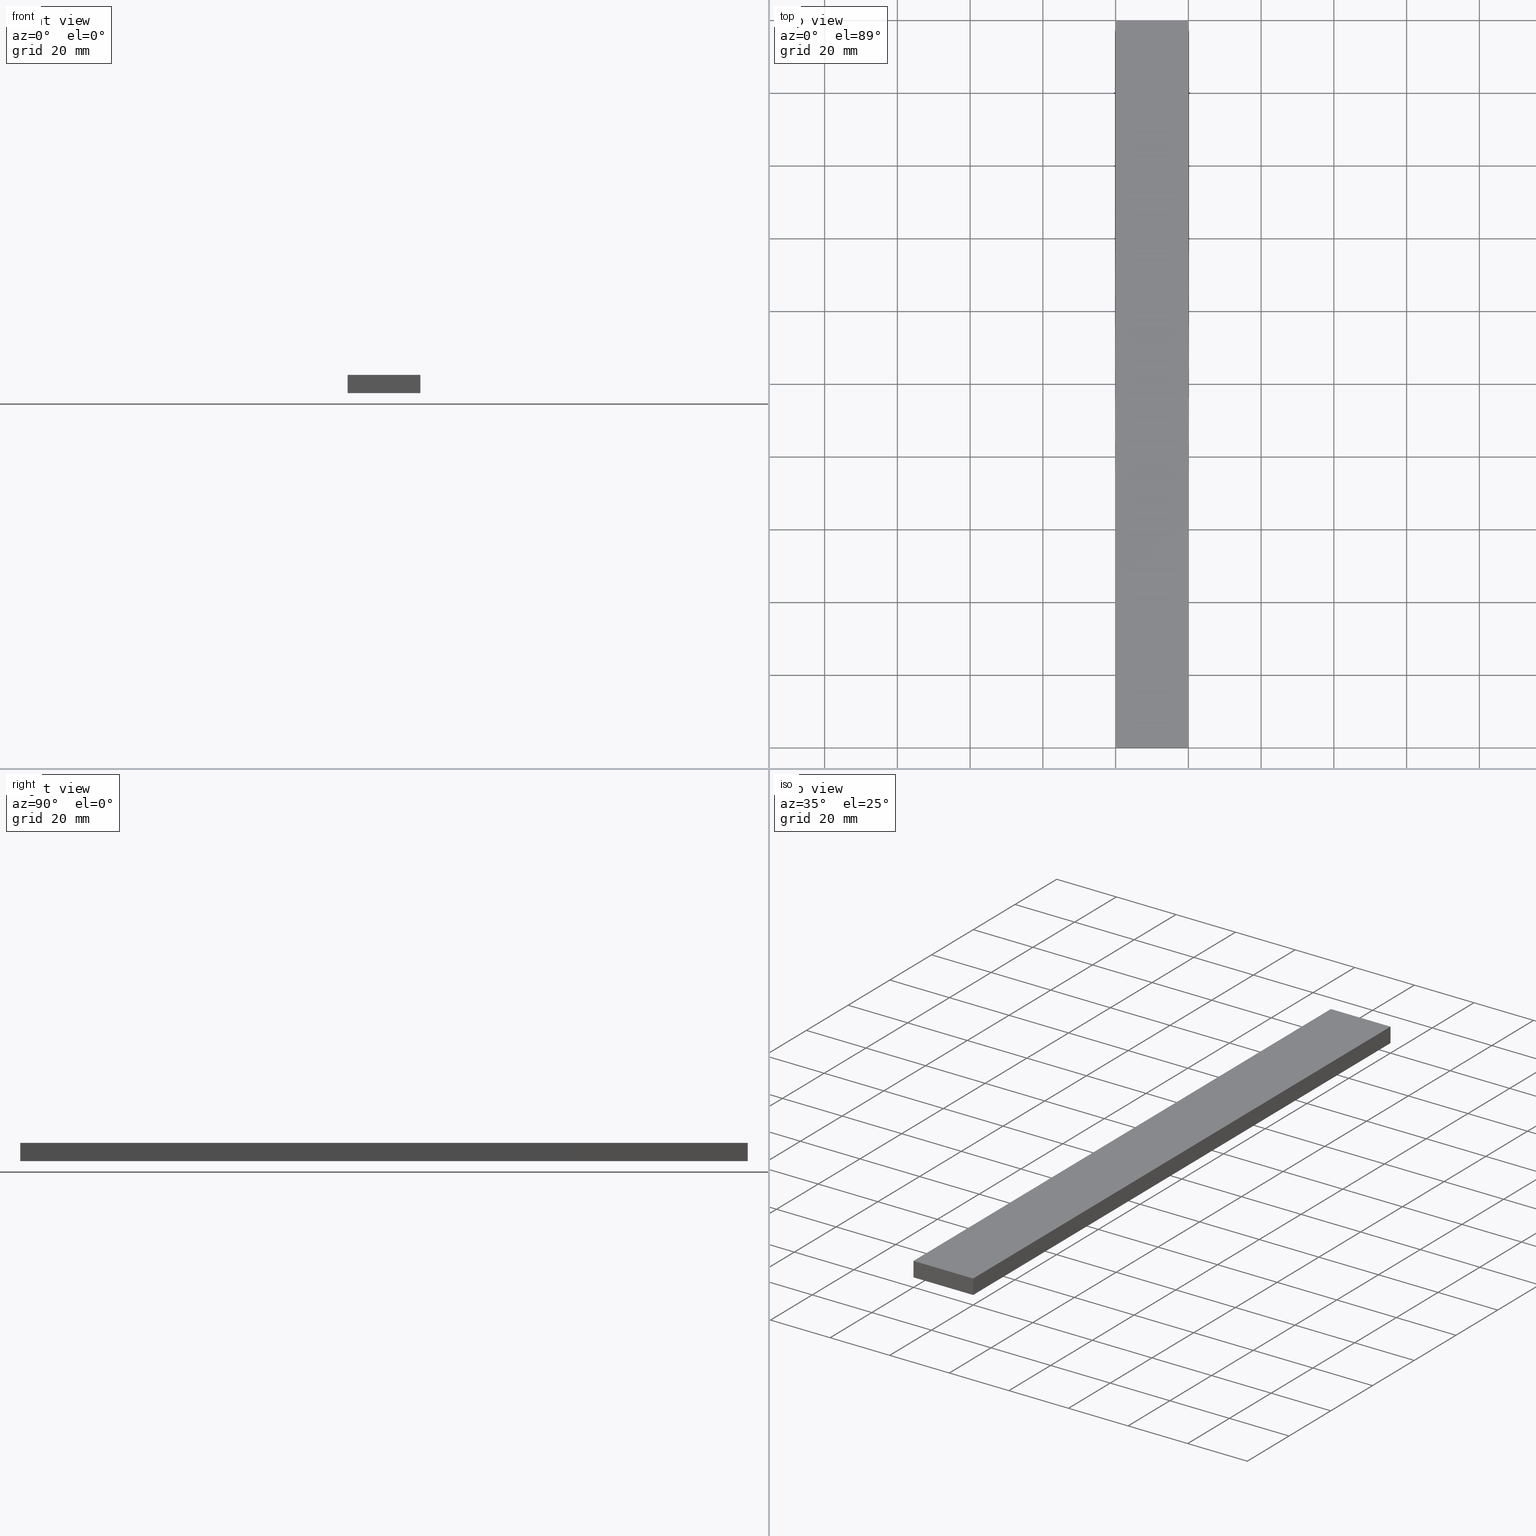
[diagram: canonical four-view strip — front | top / right | iso, engineering-drawing reading convention]
A machine part, canonical four-view strip (front | top / right | iso — engineering-drawing reading convention). The complete STEP part file that produces these views, byte-faithful:
ISO-10303-21;
HEADER;
FILE_DESCRIPTION (( 'STEP AP214' ),
    '1' );
FILE_NAME ('TM_340W_4.STEP',
    '2016-05-09T07:23:47',
    ( '' ),
    ( '' ),
    'SwSTEP 2.0',
    'SolidWorks 2015',
    '' );
FILE_SCHEMA (( 'AUTOMOTIVE_DESIGN' ));
ENDSEC;

DATA;
#1 = UNCERTAINTY_MEASURE_WITH_UNIT (LENGTH_MEASURE( 1.000000000000000100E-005 ), #141, 'distance_accuracy_value', 'NONE');
#2 = APPLICATION_CONTEXT ( 'automotive_design' ) ;
#3 = ORIENTED_EDGE ( 'NONE', *, *, #184, .T. ) ;
#4 = VECTOR ( 'NONE', #171, 1000.000000000000000 ) ;
#5 = APPLICATION_CONTEXT ( 'automotive_design' ) ;
#6 =( REPRESENTATION_RELATIONSHIP ('NONE','NONE', #192, #193 ) REPRESENTATION_RELATIONSHIP_WITH_TRANSFORMATION ( #31 )SHAPE_REPRESENTATION_RELATIONSHIP( ) );
#7 = ORIENTED_EDGE ( 'NONE', *, *, #184, .F. ) ;
#8 =( NAMED_UNIT ( * ) PLANE_ANGLE_UNIT ( ) SI_UNIT ( $, .RADIAN. ) );
#9 = PLANE ( 'NONE',  #156 ) ;
#10 = CARTESIAN_POINT ( 'NONE',  ( 0.0000000000000000000, 1000.000000000000000, 5.000000000000000000 ) ) ;
#11 = PRESENTATION_LAYER_ASSIGNMENT (  '', '', ( #82 ) ) ;
#12 = CARTESIAN_POINT ( 'NONE',  ( 0.0000000000000000000, 0.0000000000000000000, 0.0000000000000000000 ) ) ;
#13 = FILL_AREA_STYLE_COLOUR ( '', #175 ) ;
#14 =( NAMED_UNIT ( * ) PLANE_ANGLE_UNIT ( ) SI_UNIT ( $, .RADIAN. ) );
#15 = UNCERTAINTY_MEASURE_WITH_UNIT (LENGTH_MEASURE( 1.000000000000000100E-005 ), #191, 'distance_accuracy_value', 'NONE');
#16 = FACE_OUTER_BOUND ( 'NONE', #32, .T. ) ;
#17 = APPLICATION_PROTOCOL_DEFINITION ( 'draft international standard', 'automotive_design', 1998, #89 ) ;
#18 =( GEOMETRIC_REPRESENTATION_CONTEXT ( 3 ) GLOBAL_UNCERTAINTY_ASSIGNED_CONTEXT ( ( #15 ) ) GLOBAL_UNIT_ASSIGNED_CONTEXT ( ( #191, #77, #207 ) ) REPRESENTATION_CONTEXT ( 'NONE', 'WORKASPACE' ) );
#19 = PRODUCT_DEFINITION_CONTEXT ( 'detailed design', #5, 'design' ) ;
#20 = ADVANCED_FACE ( 'NONE', ( #205 ), #95, .F. ) ;
#21 = DIRECTION ( 'NONE',  ( 0.0000000000000000000, 0.0000000000000000000, -1.000000000000000000 ) ) ;
#22 = ORIENTED_EDGE ( 'NONE', *, *, #83, .F. ) ;
#23 = VERTEX_POINT ( 'NONE', #232 ) ;
#24 = PRODUCT_RELATED_PRODUCT_CATEGORY ( 'part', '', ( #223 ) ) ;
#25 = ADVANCED_FACE ( 'NONE', ( #123 ), #9, .F. ) ;
#26 = ORIENTED_EDGE ( 'NONE', *, *, #233, .T. ) ;
#27 = ORIENTED_EDGE ( 'NONE', *, *, #169, .T. ) ;
#28 = EDGE_LOOP ( 'NONE', ( #136, #29, #40, #238 ) ) ;
#29 = ORIENTED_EDGE ( 'NONE', *, *, #150, .F. ) ;
#30 = VERTEX_POINT ( 'NONE', #34 ) ;
#31 = ITEM_DEFINED_TRANSFORMATION ( 'NONE', 'NONE', #140,  #132 ) ;
#32 = EDGE_LOOP ( 'NONE', ( #230, #57, #93, #26 ) ) ;
#33 = CARTESIAN_POINT ( 'NONE',  ( 0.0000000000000000000, 200.0000000000000000, 5.000000000000000000 ) ) ;
#34 = CARTESIAN_POINT ( 'NONE',  ( 0.0000000000000000000, 0.0000000000000000000, 0.0000000000000000000 ) ) ;
#35 = ORIENTED_EDGE ( 'NONE', *, *, #78, .T. ) ;
#36 = PLANE ( 'NONE',  #75 ) ;
#37 = LINE ( 'NONE', #234, #137 ) ;
#38 =( NAMED_UNIT ( * ) SI_UNIT ( $, .STERADIAN. ) SOLID_ANGLE_UNIT ( ) );
#39 = UNCERTAINTY_MEASURE_WITH_UNIT (LENGTH_MEASURE( 1.000000000000000100E-005 ), #187, 'distance_accuracy_value', 'NONE');
#40 = ORIENTED_EDGE ( 'NONE', *, *, #233, .F. ) ;
#41 = LINE ( 'NONE', #164, #127 ) ;
#42 = AXIS2_PLACEMENT_3D ( 'NONE', #172, #153, #43 ) ;
#43 = DIRECTION ( 'NONE',  ( 1.000000000000000000, 0.0000000000000000000, 0.0000000000000000000 ) ) ;
#44 = FACE_OUTER_BOUND ( 'NONE', #130, .T. ) ;
#45 = MECHANICAL_DESIGN_GEOMETRIC_PRESENTATION_REPRESENTATION (  '', ( #139 ), #100 ) ;
#46 = ADVANCED_FACE ( 'NONE', ( #16 ), #36, .T. ) ;
#47 = PRODUCT_DEFINITION_FORMATION_WITH_SPECIFIED_SOURCE ( 'ANY', '', #200, .NOT_KNOWN. ) ;
#48 = LINE ( 'NONE', #10, #147 ) ;
#49 = AXIS2_PLACEMENT_3D ( 'NONE', #179, #67, #199 ) ;
#50 = ORIENTED_EDGE ( 'NONE', *, *, #226, .F. ) ;
#51 = LINE ( 'NONE', #69, #173 ) ;
#52 = CARTESIAN_POINT ( 'NONE',  ( 0.0000000000000000000, 200.0000000000000000, 0.0000000000000000000 ) ) ;
#53 = PRODUCT_DEFINITION_CONTEXT ( 'detailed design', #2, 'design' ) ;
#54 = DIRECTION ( 'NONE',  ( -1.000000000000000000, 0.0000000000000000000, 0.0000000000000000000 ) ) ;
#55 = DIRECTION ( 'NONE',  ( 0.0000000000000000000, 0.0000000000000000000, 1.000000000000000000 ) ) ;
#56 = SURFACE_SIDE_STYLE ('',( #114 ) ) ;
#57 = ORIENTED_EDGE ( 'NONE', *, *, #188, .T. ) ;
#58 = ADVANCED_FACE ( 'NONE', ( #44 ), #126, .F. ) ;
#59 = DIRECTION ( 'NONE',  ( 1.000000000000000000, 0.0000000000000000000, 0.0000000000000000000 ) ) ;
#60 = LINE ( 'NONE', #33, #229 ) ;
#61 = DIRECTION ( 'NONE',  ( 1.000000000000000000, 0.0000000000000000000, 0.0000000000000000000 ) ) ;
#62 = VECTOR ( 'NONE', #66, 1000.000000000000000 ) ;
#63 =( GEOMETRIC_REPRESENTATION_CONTEXT ( 3 ) GLOBAL_UNCERTAINTY_ASSIGNED_CONTEXT ( ( #1 ) ) GLOBAL_UNIT_ASSIGNED_CONTEXT ( ( #141, #8, #161 ) ) REPRESENTATION_CONTEXT ( 'NONE', 'WORKASPACE' ) );
#64 = DIRECTION ( 'NONE',  ( 1.000000000000000000, 0.0000000000000000000, 0.0000000000000000000 ) ) ;
#65 = CARTESIAN_POINT ( 'NONE',  ( 0.0000000000000000000, 1000.000000000000000, 5.000000000000000000 ) ) ;
#66 = DIRECTION ( 'NONE',  ( -1.000000000000000000, 0.0000000000000000000, 0.0000000000000000000 ) ) ;
#67 = DIRECTION ( 'NONE',  ( -1.000000000000000000, 0.0000000000000000000, 0.0000000000000000000 ) ) ;
#68 = DIRECTION ( 'NONE',  ( 1.000000000000000000, 0.0000000000000000000, 0.0000000000000000000 ) ) ;
#69 = CARTESIAN_POINT ( 'NONE',  ( 0.0000000000000000000, 0.0000000000000000000, 0.0000000000000000000 ) ) ;
#70 = CARTESIAN_POINT ( 'NONE',  ( 0.0000000000000000000, 200.0000000000000000, 0.0000000000000000000 ) ) ;
#71 = PRODUCT_DEFINITION_SHAPE ( 'NONE', 'NONE',  #190 ) ;
#72 =( NAMED_UNIT ( * ) PLANE_ANGLE_UNIT ( ) SI_UNIT ( $, .RADIAN. ) );
#73 = PRESENTATION_STYLE_ASSIGNMENT (( #74 ) ) ;
#74 = SURFACE_STYLE_USAGE ( .BOTH. , #56 ) ;
#75 = AXIS2_PLACEMENT_3D ( 'NONE', #88, #186, #64 ) ;
#76 = ORIENTED_EDGE ( 'NONE', *, *, #150, .T. ) ;
#77 =( NAMED_UNIT ( * ) PLANE_ANGLE_UNIT ( ) SI_UNIT ( $, .RADIAN. ) );
#78 = EDGE_CURVE ( 'NONE', #124, #145, #162, .T. ) ;
#79 = DIRECTION ( 'NONE',  ( 0.0000000000000000000, 0.0000000000000000000, 1.000000000000000000 ) ) ;
#80 = VECTOR ( 'NONE', #125, 1000.000000000000000 ) ;
#81 = VECTOR ( 'NONE', #180, 1000.000000000000000 ) ;
#82 = STYLED_ITEM ( 'NONE', ( #84 ), #176 ) ;
#83 = EDGE_CURVE ( 'NONE', #116, #98, #60, .T. ) ;
#84 = PRESENTATION_STYLE_ASSIGNMENT (( #101 ) ) ;
#85 = FILL_AREA_STYLE ('',( #182 ) ) ;
#86 = CARTESIAN_POINT ( 'NONE',  ( 20.00000000000000000, 1000.000000000000000, 0.0000000000000000000 ) ) ;
#87 = LINE ( 'NONE', #201, #227 ) ;
#88 = CARTESIAN_POINT ( 'NONE',  ( 0.0000000000000000000, 200.0000000000000000, 0.0000000000000000000 ) ) ;
#89 = APPLICATION_CONTEXT ( 'automotive_design' ) ;
#90 = LINE ( 'NONE', #215, #4 ) ;
#91 = PLANE ( 'NONE',  #221 ) ;
#92 = VECTOR ( 'NONE', #236, 1000.000000000000000 ) ;
#93 = ORIENTED_EDGE ( 'NONE', *, *, #110, .T. ) ;
#94 = CARTESIAN_POINT ( 'NONE',  ( 0.0000000000000000000, 1000.000000000000000, 0.0000000000000000000 ) ) ;
#95 = PLANE ( 'NONE',  #189 ) ;
#96 = APPLICATION_PROTOCOL_DEFINITION ( 'draft international standard', 'automotive_design', 1998, #5 ) ;
#97 = PRODUCT_DEFINITION ( 'UNKNOWN', '', #47, #19 ) ;
#98 = VERTEX_POINT ( 'NONE', #104 ) ;
#99 = EDGE_CURVE ( 'NONE', #131, #30, #113, .T. ) ;
#100 =( GEOMETRIC_REPRESENTATION_CONTEXT ( 3 ) GLOBAL_UNCERTAINTY_ASSIGNED_CONTEXT ( ( #160 ) ) GLOBAL_UNIT_ASSIGNED_CONTEXT ( ( #111, #14, #38 ) ) REPRESENTATION_CONTEXT ( 'NONE', 'WORKASPACE' ) );
#101 = SURFACE_STYLE_USAGE ( .BOTH. , #216 ) ;
#102 = CARTESIAN_POINT ( 'NONE',  ( 0.0000000000000000000, 1000.000000000000000, 0.0000000000000000000 ) ) ;
#103 = DIRECTION ( 'NONE',  ( 0.0000000000000000000, 0.0000000000000000000, -1.000000000000000000 ) ) ;
#104 = CARTESIAN_POINT ( 'NONE',  ( 20.00000000000000000, 200.0000000000000000, 5.000000000000000000 ) ) ;
#105 = PLANE ( 'NONE',  #49 ) ;
#106 = DIRECTION ( 'NONE',  ( 0.0000000000000000000, 0.0000000000000000000, 1.000000000000000000 ) ) ;
#107 = PRESENTATION_LAYER_ASSIGNMENT (  '', '', ( #139 ) ) ;
#108 = PRODUCT_DEFINITION_SHAPE ( 'NONE', 'NONE',  #239 ) ;
#109 = CARTESIAN_POINT ( 'NONE',  ( 0.0000000000000000000, 0.0000000000000000000, 0.0000000000000000000 ) ) ;
#110 = EDGE_CURVE ( 'NONE', #23, #131, #183, .T. ) ;
#111 =( LENGTH_UNIT ( ) NAMED_UNIT ( * ) SI_UNIT ( .MILLI., .METRE. ) );
#112 = SHAPE_DEFINITION_REPRESENTATION ( #222, #193 ) ;
#113 = LINE ( 'NONE', #102, #81 ) ;
#114 = SURFACE_STYLE_FILL_AREA ( #148 ) ;
#115 = ORIENTED_EDGE ( 'NONE', *, *, #169, .F. ) ;
#116 = VERTEX_POINT ( 'NONE', #219 ) ;
#117 = LINE ( 'NONE', #197, #80 ) ;
#118 = ORIENTED_EDGE ( 'NONE', *, *, #110, .F. ) ;
#119 = PRODUCT_CONTEXT ( 'NONE', #196, 'mechanical' ) ;
#120 = PRODUCT_CONTEXT ( 'NONE', #89, 'mechanical' ) ;
#121 = ORIENTED_EDGE ( 'NONE', *, *, #188, .F. ) ;
#122 = ORIENTED_EDGE ( 'NONE', *, *, #99, .F. ) ;
#123 = FACE_OUTER_BOUND ( 'NONE', #28, .T. ) ;
#124 = VERTEX_POINT ( 'NONE', #142 ) ;
#125 = DIRECTION ( 'NONE',  ( 0.0000000000000000000, 0.0000000000000000000, -1.000000000000000000 ) ) ;
#126 = PLANE ( 'NONE',  #133 ) ;
#127 = VECTOR ( 'NONE', #235, 1000.000000000000000 ) ;
#128 = DIRECTION ( 'NONE',  ( 1.000000000000000000, 0.0000000000000000000, 0.0000000000000000000 ) ) ;
#129 = DIRECTION ( 'NONE',  ( 1.000000000000000000, 0.0000000000000000000, 0.0000000000000000000 ) ) ;
#130 = EDGE_LOOP ( 'NONE', ( #27, #211, #22, #76 ) ) ;
#131 = VERTEX_POINT ( 'NONE', #52 ) ;
#132 = AXIS2_PLACEMENT_3D ( 'NONE', #109, #237, #129 ) ;
#133 = AXIS2_PLACEMENT_3D ( 'NONE', #65, #158, #54 ) ;
#134 = EDGE_LOOP ( 'NONE', ( #35, #7, #121, #159 ) ) ;
#135 = AXIS2_PLACEMENT_3D ( 'NONE', #12, #170, #220 ) ;
#136 = ORIENTED_EDGE ( 'NONE', *, *, #226, .T. ) ;
#137 = VECTOR ( 'NONE', #68, 1000.000000000000000 ) ;
#138 = APPLICATION_PROTOCOL_DEFINITION ( 'draft international standard', 'automotive_design', 1998, #2 ) ;
#139 = STYLED_ITEM ( 'NONE', ( #73 ), #143 ) ;
#140 = AXIS2_PLACEMENT_3D ( 'NONE', #209, #79, #59 ) ;
#141 =( LENGTH_UNIT ( ) NAMED_UNIT ( * ) SI_UNIT ( .MILLI., .METRE. ) );
#142 = CARTESIAN_POINT ( 'NONE',  ( 20.00000000000000000, 0.0000000000000000000, 5.000000000000000000 ) ) ;
#143 = ADVANCED_BREP_SHAPE_REPRESENTATION ( '', ( #176, #132 ), #157 ) ;
#144 = DIRECTION ( 'NONE',  ( 0.0000000000000000000, -1.000000000000000000, 0.0000000000000000000 ) ) ;
#145 = VERTEX_POINT ( 'NONE', #202 ) ;
#146 = ORIENTED_EDGE ( 'NONE', *, *, #78, .F. ) ;
#147 = VECTOR ( 'NONE', #167, 1000.000000000000000 ) ;
#148 = FILL_AREA_STYLE ('',( #13 ) ) ;
#149 = ADVANCED_FACE ( 'NONE', ( #224 ), #105, .F. ) ;
#150 = EDGE_CURVE ( 'NONE', #116, #165, #48, .T. ) ;
#151 = SURFACE_STYLE_FILL_AREA ( #85 ) ;
#152 = EDGE_LOOP ( 'NONE', ( #194, #122, #118, #3 ) ) ;
#153 = DIRECTION ( 'NONE',  ( 0.0000000000000000000, 0.0000000000000000000, 1.000000000000000000 ) ) ;
#154 = SHAPE_REPRESENTATION_RELATIONSHIP ( 'NONE' , 'NONE' ,  #193, #143 ) ;
#155 = ORIENTED_EDGE ( 'NONE', *, *, #212, .F. ) ;
#156 = AXIS2_PLACEMENT_3D ( 'NONE', #94, #128, #21 ) ;
#157 =( GEOMETRIC_REPRESENTATION_CONTEXT ( 3 ) GLOBAL_UNCERTAINTY_ASSIGNED_CONTEXT ( ( #39 ) ) GLOBAL_UNIT_ASSIGNED_CONTEXT ( ( #187, #72, #203 ) ) REPRESENTATION_CONTEXT ( 'NONE', 'WORKASPACE' ) );
#158 = DIRECTION ( 'NONE',  ( 0.0000000000000000000, 0.0000000000000000000, -1.000000000000000000 ) ) ;
#159 = ORIENTED_EDGE ( 'NONE', *, *, #214, .T. ) ;
#160 = UNCERTAINTY_MEASURE_WITH_UNIT (LENGTH_MEASURE( 1.000000000000000100E-005 ), #111, 'distance_accuracy_value', 'NONE');
#161 =( NAMED_UNIT ( * ) SI_UNIT ( $, .STERADIAN. ) SOLID_ANGLE_UNIT ( ) );
#162 = LINE ( 'NONE', #168, #178 ) ;
#163 = DIRECTION ( 'NONE',  ( 1.000000000000000000, 0.0000000000000000000, 0.0000000000000000000 ) ) ;
#164 = CARTESIAN_POINT ( 'NONE',  ( 20.00000000000000000, 1000.000000000000000, 5.000000000000000000 ) ) ;
#165 = VERTEX_POINT ( 'NONE', #181 ) ;
#166 = PRODUCT_DEFINITION_FORMATION_WITH_SPECIFIED_SOURCE ( 'ANY', '', #223, .NOT_KNOWN. ) ;
#167 = DIRECTION ( 'NONE',  ( 0.0000000000000000000, -1.000000000000000000, 0.0000000000000000000 ) ) ;
#168 = CARTESIAN_POINT ( 'NONE',  ( 20.00000000000000000, 0.0000000000000000000, 5.000000000000000000 ) ) ;
#169 = EDGE_CURVE ( 'NONE', #165, #124, #37, .T. ) ;
#170 = DIRECTION ( 'NONE',  ( 0.0000000000000000000, 0.0000000000000000000, 1.000000000000000000 ) ) ;
#171 = DIRECTION ( 'NONE',  ( -1.000000000000000000, 0.0000000000000000000, 0.0000000000000000000 ) ) ;
#172 = CARTESIAN_POINT ( 'NONE',  ( 0.0000000000000000000, 0.0000000000000000000, 0.0000000000000000000 ) ) ;
#173 = VECTOR ( 'NONE', #106, 1000.000000000000000 ) ;
#174 = COLOUR_RGB ( '',0.7921568627450980000, 0.8196078431372548800, 0.9333333333333333500 ) ;
#175 = COLOUR_RGB ( '',0.7921568627450980000, 0.8196078431372548800, 0.9333333333333333500 ) ;
#176 = MANIFOLD_SOLID_BREP ( '���߰�1', #213 ) ;
#177 = MECHANICAL_DESIGN_GEOMETRIC_PRESENTATION_REPRESENTATION (  '', ( #82 ), #63 ) ;
#178 = VECTOR ( 'NONE', #103, 1000.000000000000000 ) ;
#179 = CARTESIAN_POINT ( 'NONE',  ( 20.00000000000000000, 1000.000000000000000, 5.000000000000000000 ) ) ;
#180 = DIRECTION ( 'NONE',  ( 0.0000000000000000000, -1.000000000000000000, 0.0000000000000000000 ) ) ;
#181 = CARTESIAN_POINT ( 'NONE',  ( 0.0000000000000000000, 0.0000000000000000000, 5.000000000000000000 ) ) ;
#182 = FILL_AREA_STYLE_COLOUR ( '', #174 ) ;
#183 = LINE ( 'NONE', #185, #62 ) ;
#184 = EDGE_CURVE ( 'NONE', #23, #145, #87, .T. ) ;
#185 = CARTESIAN_POINT ( 'NONE',  ( 20.00000000000000000, 200.0000000000000000, 0.0000000000000000000 ) ) ;
#186 = DIRECTION ( 'NONE',  ( -0.0000000000000000000, 1.000000000000000000, 0.0000000000000000000 ) ) ;
#187 =( LENGTH_UNIT ( ) NAMED_UNIT ( * ) SI_UNIT ( .MILLI., .METRE. ) );
#188 = EDGE_CURVE ( 'NONE', #98, #23, #117, .T. ) ;
#189 = AXIS2_PLACEMENT_3D ( 'NONE', #198, #204, #61 ) ;
#190 = PRODUCT_DEFINITION ( 'UNKNOWN', '', #166, #53 ) ;
#191 =( LENGTH_UNIT ( ) NAMED_UNIT ( * ) SI_UNIT ( .MILLI., .METRE. ) );
#192 = SHAPE_REPRESENTATION ( 'TM_340W_4', ( #135, #140 ), #18 ) ;
#193 = SHAPE_REPRESENTATION ( 'rubber foam', ( #132 ), #157 ) ;
#194 = ORIENTED_EDGE ( 'NONE', *, *, #212, .T. ) ;
#195 = SHAPE_DEFINITION_REPRESENTATION ( #71, #192 ) ;
#196 = APPLICATION_CONTEXT ( 'automotive_design' ) ;
#197 = CARTESIAN_POINT ( 'NONE',  ( 20.00000000000000000, 200.0000000000000000, 5.000000000000000000 ) ) ;
#198 = CARTESIAN_POINT ( 'NONE',  ( 0.0000000000000000000, 0.0000000000000000000, 0.0000000000000000000 ) ) ;
#199 = DIRECTION ( 'NONE',  ( 0.0000000000000000000, 0.0000000000000000000, 1.000000000000000000 ) ) ;
#200 = PRODUCT ( 'rubber foam', 'rubber foam', '', ( #120 ) ) ;
#201 = CARTESIAN_POINT ( 'NONE',  ( 20.00000000000000000, 1000.000000000000000, 0.0000000000000000000 ) ) ;
#202 = CARTESIAN_POINT ( 'NONE',  ( 20.00000000000000000, 0.0000000000000000000, 0.0000000000000000000 ) ) ;
#203 =( NAMED_UNIT ( * ) SI_UNIT ( $, .STERADIAN. ) SOLID_ANGLE_UNIT ( ) );
#204 = DIRECTION ( 'NONE',  ( -0.0000000000000000000, 1.000000000000000000, 0.0000000000000000000 ) ) ;
#205 = FACE_OUTER_BOUND ( 'NONE', #231, .T. ) ;
#206 = PRODUCT_RELATED_PRODUCT_CATEGORY ( 'part', '', ( #200 ) ) ;
#207 =( NAMED_UNIT ( * ) SI_UNIT ( $, .STERADIAN. ) SOLID_ANGLE_UNIT ( ) );
#208 = LINE ( 'NONE', #70, #92 ) ;
#209 = CARTESIAN_POINT ( 'NONE',  ( 0.0000000000000000000, 0.0000000000000000000, 0.0000000000000000000 ) ) ;
#210 = ADVANCED_FACE ( 'NONE', ( #228 ), #91, .F. ) ;
#211 = ORIENTED_EDGE ( 'NONE', *, *, #214, .F. ) ;
#212 = EDGE_CURVE ( 'NONE', #145, #30, #90, .T. ) ;
#213 = CLOSED_SHELL ( 'NONE', ( #58, #149, #210, #25, #46, #20 ) ) ;
#214 = EDGE_CURVE ( 'NONE', #98, #124, #41, .T. ) ;
#215 = CARTESIAN_POINT ( 'NONE',  ( 20.00000000000000000, 0.0000000000000000000, 0.0000000000000000000 ) ) ;
#216 = SURFACE_SIDE_STYLE ('',( #151 ) ) ;
#217 = DIRECTION ( 'NONE',  ( 1.000000000000000000, 0.0000000000000000000, 0.0000000000000000000 ) ) ;
#218 = CONTEXT_DEPENDENT_SHAPE_REPRESENTATION ( #6, #108 ) ;
#219 = CARTESIAN_POINT ( 'NONE',  ( 0.0000000000000000000, 200.0000000000000000, 5.000000000000000000 ) ) ;
#220 = DIRECTION ( 'NONE',  ( 1.000000000000000000, 0.0000000000000000000, 0.0000000000000000000 ) ) ;
#221 = AXIS2_PLACEMENT_3D ( 'NONE', #86, #55, #163 ) ;
#222 = PRODUCT_DEFINITION_SHAPE ( 'NONE', 'NONE',  #97 ) ;
#223 = PRODUCT ( 'TM_340W_4', 'TM_340W_4', '', ( #119 ) ) ;
#224 = FACE_OUTER_BOUND ( 'NONE', #134, .T. ) ;
#225 = APPLICATION_PROTOCOL_DEFINITION ( 'draft international standard', 'automotive_design', 1998, #196 ) ;
#226 = EDGE_CURVE ( 'NONE', #30, #165, #51, .T. ) ;
#227 = VECTOR ( 'NONE', #144, 1000.000000000000000 ) ;
#228 = FACE_OUTER_BOUND ( 'NONE', #152, .T. ) ;
#229 = VECTOR ( 'NONE', #217, 1000.000000000000000 ) ;
#230 = ORIENTED_EDGE ( 'NONE', *, *, #83, .T. ) ;
#231 = EDGE_LOOP ( 'NONE', ( #115, #50, #155, #146 ) ) ;
#232 = CARTESIAN_POINT ( 'NONE',  ( 20.00000000000000000, 200.0000000000000000, 0.0000000000000000000 ) ) ;
#233 = EDGE_CURVE ( 'NONE', #131, #116, #208, .T. ) ;
#234 = CARTESIAN_POINT ( 'NONE',  ( 0.0000000000000000000, 0.0000000000000000000, 5.000000000000000000 ) ) ;
#235 = DIRECTION ( 'NONE',  ( 0.0000000000000000000, -1.000000000000000000, 0.0000000000000000000 ) ) ;
#236 = DIRECTION ( 'NONE',  ( 0.0000000000000000000, 0.0000000000000000000, 1.000000000000000000 ) ) ;
#237 = DIRECTION ( 'NONE',  ( 0.0000000000000000000, 0.0000000000000000000, 1.000000000000000000 ) ) ;
#238 = ORIENTED_EDGE ( 'NONE', *, *, #99, .T. ) ;
#239 = NEXT_ASSEMBLY_USAGE_OCCURRENCE ( 'NAUO1', ' ', ' ', #190, #97, $ ) ;
ENDSEC;
END-ISO-10303-21;
